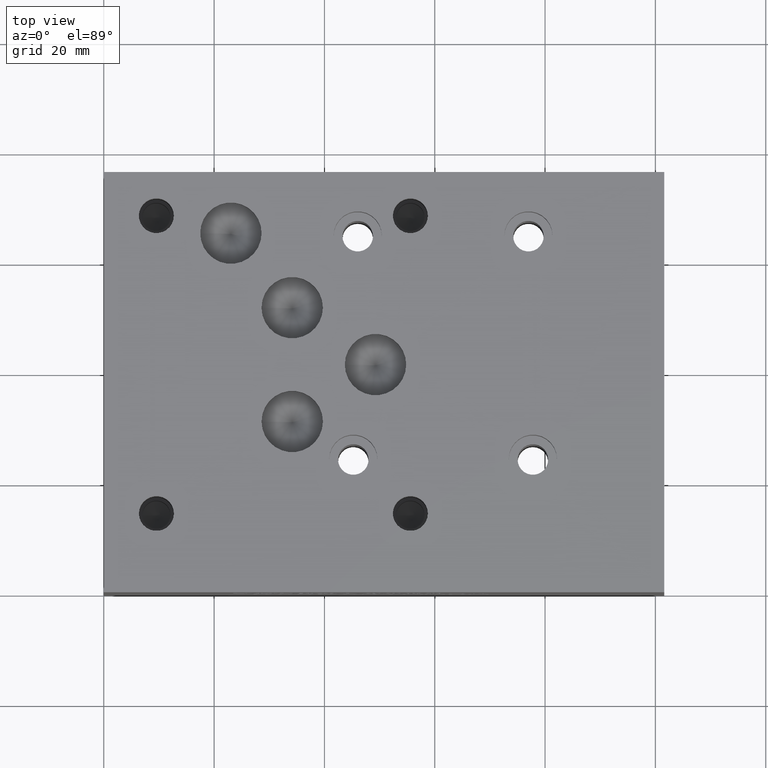
[diagram: clean part render]
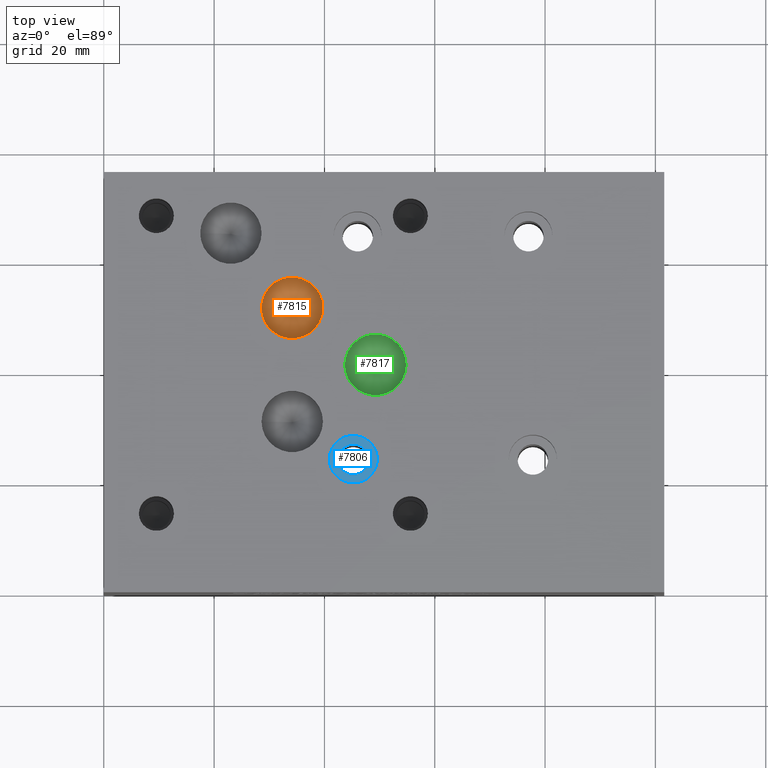
[diagram: same view with three faces highlighted in distinct colors, each labeled with its STEP entity id]
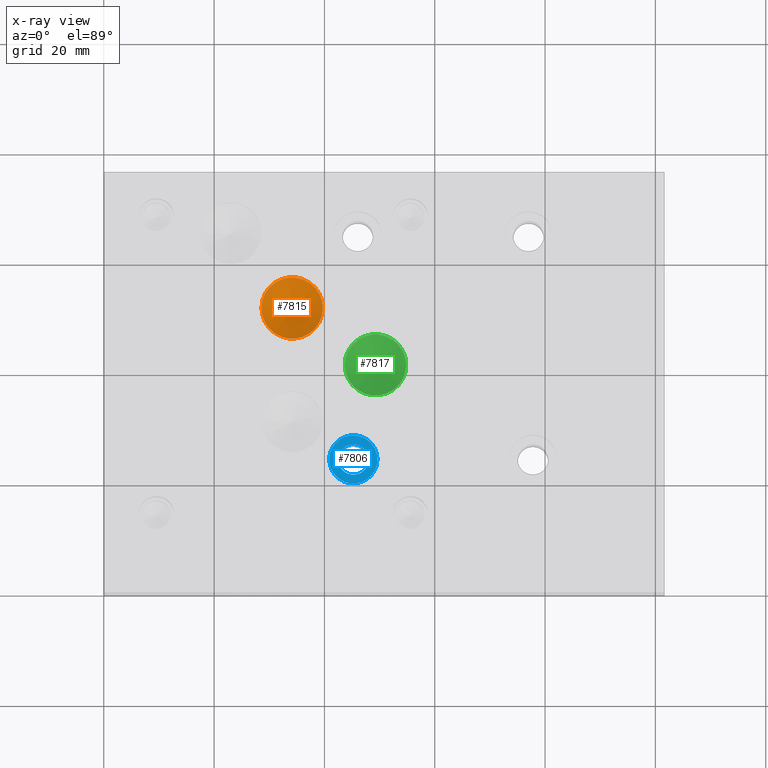
[diagram: x-ray of the same camera — body ghosted, the three highlighted faces saturated]
A machine part, top view with three faces highlighted in distinct colors.
The next image is the same camera in x-ray (body ghosted, the three faces saturated) — at least one of them is partly hidden behind the body in this view.
Their STEP definitions:

[orange] entity #7815 — the highlighted conical surface has half-angle 60 deg.
#83=CIRCLE('',#8184,5.5626);
#114=CONICAL_SURFACE('',#8183,2.7813,1.0471975511966);
#851=FACE_OUTER_BOUND('',#1307,.T.);
#1307=EDGE_LOOP('',(#6727,#6728,#6729));
#2130=LINE('',#13123,#2933);
#2933=VECTOR('',#9664,2.7813);
#3633=VERTEX_POINT('',#13120);
#3634=VERTEX_POINT('',#13122);
#4675=EDGE_CURVE('',#3633,#3633,#83,.T.);
#4676=EDGE_CURVE('',#3633,#3634,#2130,.T.);
#6727=ORIENTED_EDGE('',*,*,#4675,.T.);
#6728=ORIENTED_EDGE('',*,*,#4676,.T.);
#6729=ORIENTED_EDGE('',*,*,#4676,.F.);
#7815=ADVANCED_FACE('',(#851),#114,.F.);
#8183=AXIS2_PLACEMENT_3D('',#13119,#9660,#9661);
#8184=AXIS2_PLACEMENT_3D('',#13121,#9662,#9663);
#9660=DIRECTION('center_axis',(0.,0.,1.));
#9661=DIRECTION('ref_axis',(1.,0.,0.));
#9662=DIRECTION('center_axis',(0.,0.,1.));
#9663=DIRECTION('ref_axis',(1.,0.,0.));
#9664=DIRECTION('',(0.866025403784439,1.06057523872491E-16,-0.5));
#13119=CARTESIAN_POINT('Origin',(34.1503,51.59248,33.2826456963029));
#13120=CARTESIAN_POINT('',(28.5877,51.59248,34.88843));
#13121=CARTESIAN_POINT('Origin',(34.1503,51.59248,34.88843));
#13122=CARTESIAN_POINT('',(34.1503,51.59248,31.6768613926058));
#13123=CARTESIAN_POINT('',(31.369,51.59248,33.2826456963029));

[blue] entity #7806 — the highlighted planar face has unit normal (0, 0, 1).
#74=CIRCLE('',#8166,4.3688);
#75=CIRCLE('',#8167,2.7686);
#454=FACE_BOUND('',#1296,.T.);
#842=FACE_OUTER_BOUND('',#1295,.T.);
#1295=EDGE_LOOP('',(#6693));
#1296=EDGE_LOOP('',(#6694));
#3624=VERTEX_POINT('',#13087);
#3625=VERTEX_POINT('',#13089);
#4660=EDGE_CURVE('',#3624,#3624,#74,.T.);
#4661=EDGE_CURVE('',#3625,#3625,#75,.T.);
#6693=ORIENTED_EDGE('',*,*,#4660,.T.);
#6694=ORIENTED_EDGE('',*,*,#4661,.F.);
#7093=PLANE('',#8165);
#7806=ADVANCED_FACE('',(#842,#454),#7093,.T.);
#8165=AXIS2_PLACEMENT_3D('',#13086,#9618,#9619);
#8166=AXIS2_PLACEMENT_3D('',#13088,#9620,#9621);
#8167=AXIS2_PLACEMENT_3D('',#13090,#9622,#9623);
#9618=DIRECTION('center_axis',(0.,0.,1.));
#9619=DIRECTION('ref_axis',(1.,0.,0.));
#9620=DIRECTION('center_axis',(0.,0.,1.));
#9621=DIRECTION('ref_axis',(1.,0.,0.));
#9622=DIRECTION('center_axis',(0.,0.,1.));
#9623=DIRECTION('ref_axis',(1.,0.,0.));
#13086=CARTESIAN_POINT('Origin',(45.2374,24.2062,30.9626));
#13087=CARTESIAN_POINT('',(40.8686,24.2062,30.9626));
#13088=CARTESIAN_POINT('Origin',(45.2374,24.2062,30.9626));
#13089=CARTESIAN_POINT('',(42.4688,24.2062,30.9626));
#13090=CARTESIAN_POINT('Origin',(45.2374,24.2062,30.9626));

[green] entity #7817 — the highlighted conical surface has half-angle 60 deg.
#85=CIRCLE('',#8188,5.5626);
#115=CONICAL_SURFACE('',#8187,2.7813,1.0471975511966);
#853=FACE_OUTER_BOUND('',#1309,.T.);
#1309=EDGE_LOOP('',(#6734,#6735,#6736));
#2132=LINE('',#13132,#2935);
#2935=VECTOR('',#9674,2.7813);
#3636=VERTEX_POINT('',#13129);
#3637=VERTEX_POINT('',#13131);
#4679=EDGE_CURVE('',#3636,#3636,#85,.T.);
#4680=EDGE_CURVE('',#3636,#3637,#2132,.T.);
#6734=ORIENTED_EDGE('',*,*,#4679,.T.);
#6735=ORIENTED_EDGE('',*,*,#4680,.T.);
#6736=ORIENTED_EDGE('',*,*,#4680,.F.);
#7817=ADVANCED_FACE('',(#853),#115,.F.);
#8187=AXIS2_PLACEMENT_3D('',#13128,#9670,#9671);
#8188=AXIS2_PLACEMENT_3D('',#13130,#9672,#9673);
#9670=DIRECTION('center_axis',(0.,0.,1.));
#9671=DIRECTION('ref_axis',(1.,0.,0.));
#9672=DIRECTION('center_axis',(0.,0.,1.));
#9673=DIRECTION('ref_axis',(1.,0.,0.));
#9674=DIRECTION('',(0.866025403784439,1.06057523872491E-16,-0.5));
#13128=CARTESIAN_POINT('Origin',(49.2506,41.275,33.2826456963029));
#13129=CARTESIAN_POINT('',(43.688,41.275,34.88843));
#13130=CARTESIAN_POINT('Origin',(49.2506,41.275,34.88843));
#13131=CARTESIAN_POINT('',(49.2506,41.275,31.6768613926058));
#13132=CARTESIAN_POINT('',(46.4693,41.275,33.2826456963029));